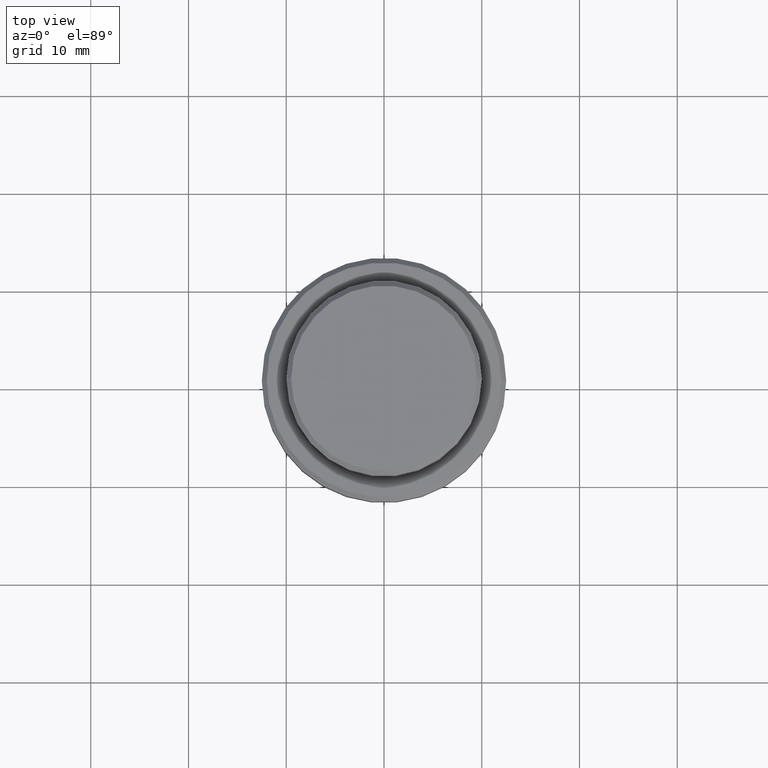
[diagram: clean part render]
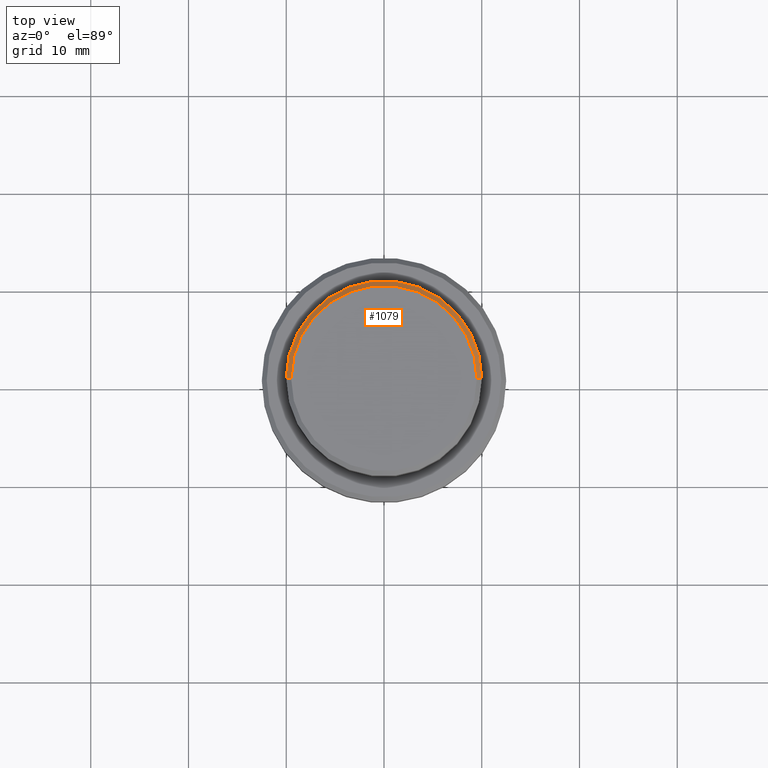
[diagram: same view with one face highlighted and labeled with its STEP entity id]
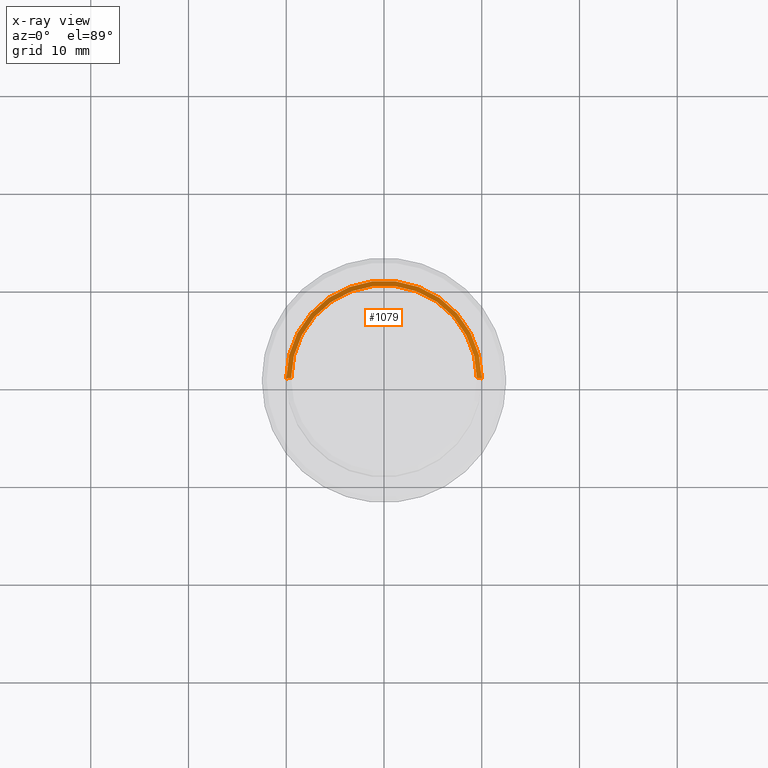
[diagram: x-ray of the same camera — body ghosted, the highlighted face saturated]
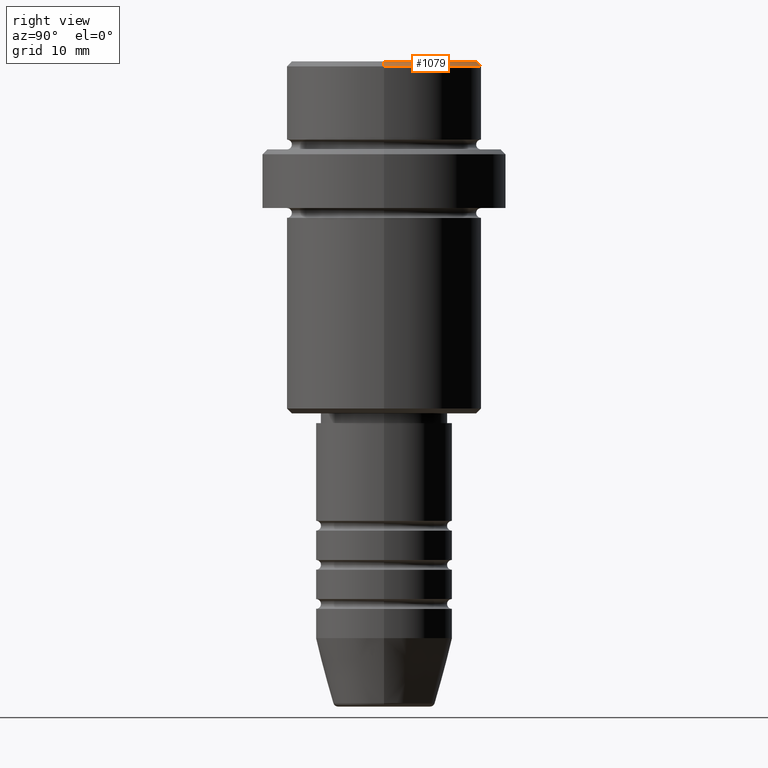
[diagram: same view with one face highlighted and labeled with its STEP entity id]
A machine part, top view. The second image highlights one B-rep face of the part: STEP entity #1079.
The next image is the same camera in x-ray: the body ghosted, the highlighted face saturated — about 0% of this face is hidden behind the body in this view.
A second angle (right view) of the same face is appended — the face is thin or edge-on in the first view.
In plain terms, the highlighted conical surface has half-angle 45 deg.
Its self-contained STEP definition (entity closure, byte-faithful):
#8 = EDGE_LOOP ( 'NONE', ( #1414, #344, #1307, #646 ) ) ;
#36 = AXIS2_PLACEMENT_3D ( 'NONE', #698, #262, #503 ) ;
#37 = DIRECTION ( 'NONE',  ( 0.000000000000000000, 0.000000000000000000, -1.000000000000000000 ) ) ;
#71 = CARTESIAN_POINT ( 'NONE',  ( 9.500000000000001776, 1.163414459189985682E-15, 0.000000000000000000 ) ) ;
#83 = CIRCLE ( 'NONE', #107, 9.999999999999998224 ) ;
#100 = EDGE_CURVE ( 'NONE', #1022, #1194, #384, .T. ) ;
#107 = AXIS2_PLACEMENT_3D ( 'NONE', #500, #37, #477 ) ;
#146 = CARTESIAN_POINT ( 'NONE',  ( 9.999999999999998224, 0.000000000000000000, -0.4999999999999970024 ) ) ;
#154 = EDGE_CURVE ( 'NONE', #1022, #1294, #202, .T. ) ;
#202 = CIRCLE ( 'NONE', #36, 9.500000000000001776 ) ;
#250 = CARTESIAN_POINT ( 'NONE',  ( -9.999999999999998224, 1.224646799147353059E-15, -0.4999999999999970024 ) ) ;
#262 = DIRECTION ( 'NONE',  ( -0.000000000000000000, -0.000000000000000000, 1.000000000000000000 ) ) ;
#344 = ORIENTED_EDGE ( 'NONE', *, *, #100, .T. ) ;
#354 = CARTESIAN_POINT ( 'NONE',  ( 0.000000000000000000, 0.000000000000000000, 0.000000000000000000 ) ) ;
#370 = EDGE_CURVE ( 'NONE', #1294, #575, #557, .T. ) ;
#384 = LINE ( 'NONE', #71, #1292 ) ;
#465 = VECTOR ( 'NONE', #661, 1000.000000000000114 ) ;
#477 = DIRECTION ( 'NONE',  ( 1.000000000000000000, 0.000000000000000000, 0.000000000000000000 ) ) ;
#500 = CARTESIAN_POINT ( 'NONE',  ( 0.000000000000000000, 0.000000000000000000, -0.4999999999999970024 ) ) ;
#503 = DIRECTION ( 'NONE',  ( 1.000000000000000000, 0.000000000000000000, 0.000000000000000000 ) ) ;
#557 = LINE ( 'NONE', #1099, #465 ) ;
#573 = FACE_OUTER_BOUND ( 'NONE', #8, .T. ) ;
#575 = VERTEX_POINT ( 'NONE', #250 ) ;
#591 = DIRECTION ( 'NONE',  ( 0.7071067811865474617, 8.659560562354932858E-17, -0.7071067811865474617 ) ) ;
#646 = ORIENTED_EDGE ( 'NONE', *, *, #370, .F. ) ;
#661 = DIRECTION ( 'NONE',  ( -0.7071067811865474617, 0.000000000000000000, -0.7071067811865474617 ) ) ;
#698 = CARTESIAN_POINT ( 'NONE',  ( 0.000000000000000000, 0.000000000000000000, 0.000000000000000000 ) ) ;
#894 = EDGE_CURVE ( 'NONE', #575, #1194, #83, .T. ) ;
#910 = DIRECTION ( 'NONE',  ( 0.000000000000000000, 0.000000000000000000, -1.000000000000000000 ) ) ;
#923 = CARTESIAN_POINT ( 'NONE',  ( -9.500000000000001776, 0.000000000000000000, 0.000000000000000000 ) ) ;
#1022 = VERTEX_POINT ( 'NONE', #1281 ) ;
#1079 = ADVANCED_FACE ( 'NONE', ( #573 ), #1217, .T. ) ;
#1099 = CARTESIAN_POINT ( 'NONE',  ( -9.500000000000001776, 0.000000000000000000, 0.000000000000000000 ) ) ;
#1150 = AXIS2_PLACEMENT_3D ( 'NONE', #354, #910, #1229 ) ;
#1194 = VERTEX_POINT ( 'NONE', #146 ) ;
#1217 = CONICAL_SURFACE ( 'NONE', #1150, 9.500000000000001776, 0.7853981633974482790 ) ;
#1229 = DIRECTION ( 'NONE',  ( -1.000000000000000000, 0.000000000000000000, 0.000000000000000000 ) ) ;
#1281 = CARTESIAN_POINT ( 'NONE',  ( 9.500000000000001776, 1.194030629168669469E-15, 0.000000000000000000 ) ) ;
#1292 = VECTOR ( 'NONE', #591, 1000.000000000000114 ) ;
#1294 = VERTEX_POINT ( 'NONE', #923 ) ;
#1307 = ORIENTED_EDGE ( 'NONE', *, *, #894, .F. ) ;
#1414 = ORIENTED_EDGE ( 'NONE', *, *, #154, .F. ) ;